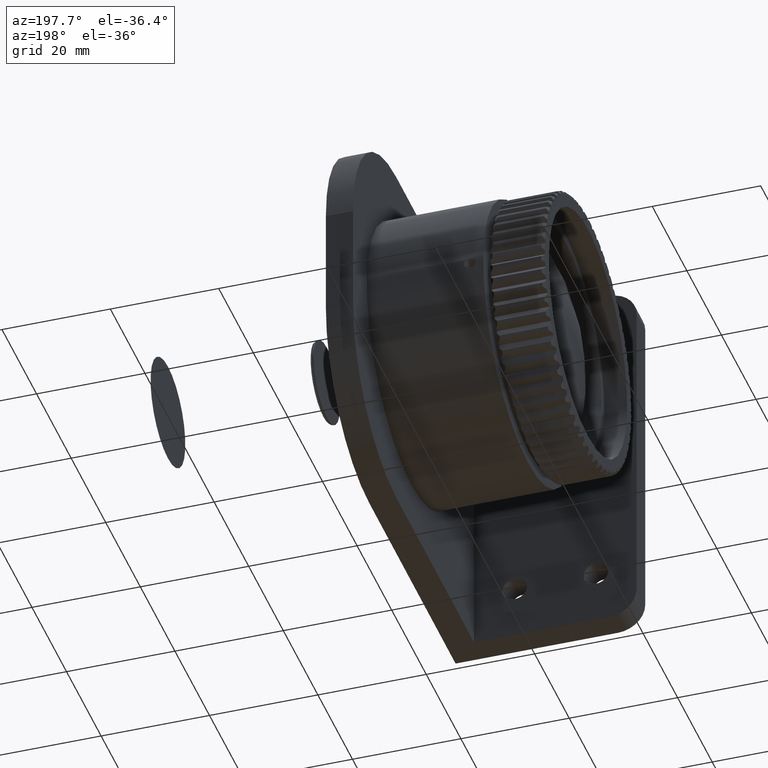
[diagram: clean part render]
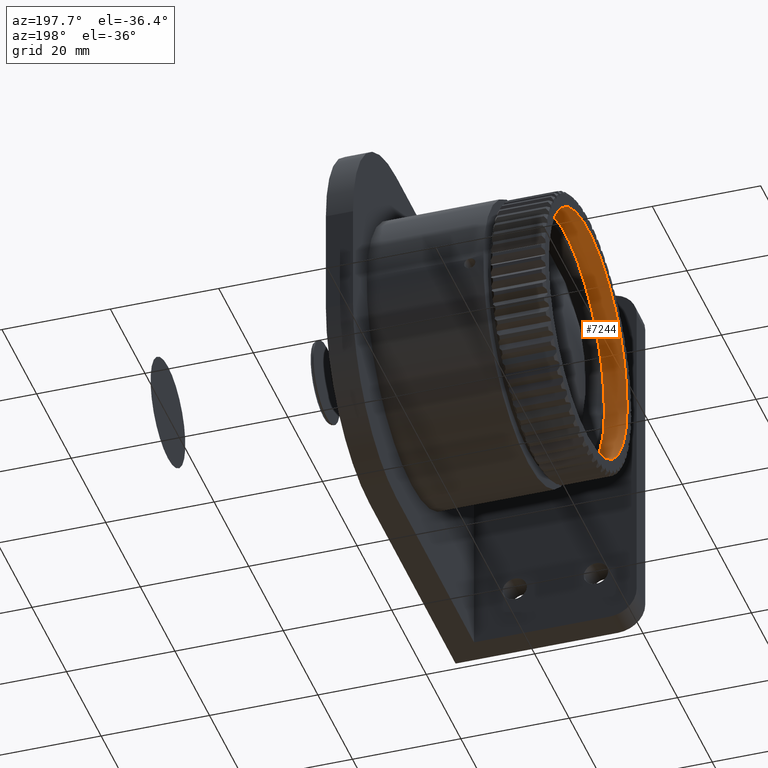
[diagram: same view with one face highlighted and labeled with its STEP entity id]
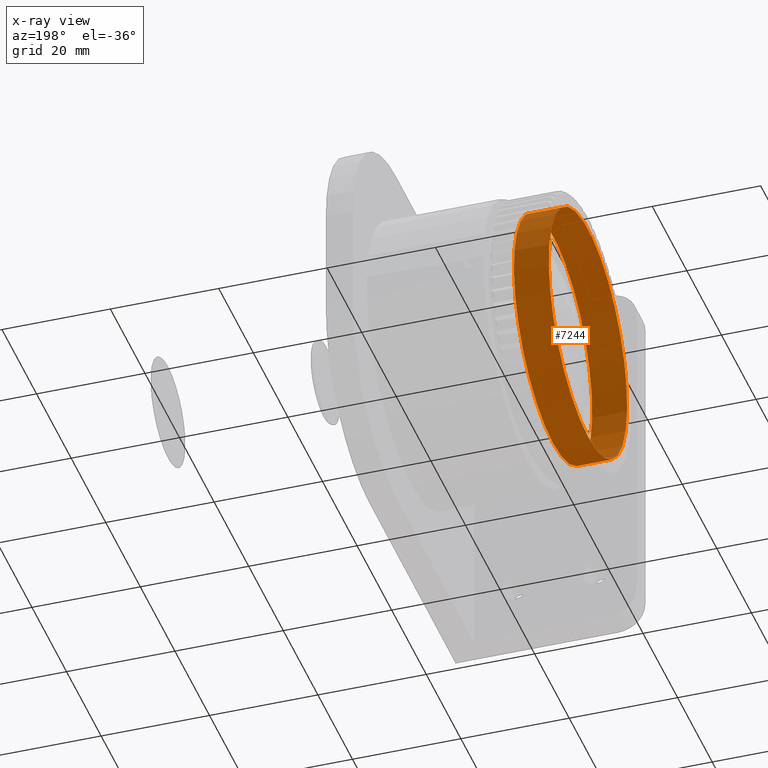
[diagram: x-ray of the same camera — body ghosted, the highlighted face saturated]
A machine part, auxiliary view. The second image highlights one B-rep face of the part: STEP entity #7244.
The next image is the same camera in x-ray: the body ghosted, the highlighted face saturated — about 0% of this face is hidden behind the body in this view.
In plain terms, the highlighted cylindrical surface (bore or boss wall) has radius 22.65 mm, axis along (1, -0, -0).
Its self-contained STEP definition (entity closure, byte-faithful):
#628 = ORIENTED_EDGE ( 'NONE', *, *, #13524, .F. ) ;
#701 = VERTEX_POINT ( 'NONE', #5010 ) ;
#885 = DIRECTION ( 'NONE',  ( 1.000000000000000000, -0.000000000000000000, -0.000000000000000000 ) ) ;
#2627 = DIRECTION ( 'NONE',  ( 1.000000000000000000, -0.000000000000000000, -0.000000000000000000 ) ) ;
#3392 = AXIS2_PLACEMENT_3D ( 'NONE', #7993, #2627, #4954 ) ;
#4790 = ORIENTED_EDGE ( 'NONE', *, *, #10571, .F. ) ;
#4954 = DIRECTION ( 'NONE',  ( 0.000000000000000000, 0.000000000000000000, -1.000000000000000000 ) ) ;
#5010 = CARTESIAN_POINT ( 'NONE',  ( 3.846204000000001066, 0.000000000000000000, -22.64999999999999858 ) ) ;
#5044 = DIRECTION ( 'NONE',  ( 0.000000000000000000, 0.000000000000000000, -1.000000000000000000 ) ) ;
#5079 = AXIS2_PLACEMENT_3D ( 'NONE', #11744, #885, #5191 ) ;
#5191 = DIRECTION ( 'NONE',  ( 0.000000000000000000, 0.000000000000000000, -1.000000000000000000 ) ) ;
#5727 = CARTESIAN_POINT ( 'NONE',  ( -2.603796000000001332, 0.000000000000000000, -22.64999999999999858 ) ) ;
#5859 = VERTEX_POINT ( 'NONE', #5727 ) ;
#6013 = EDGE_LOOP ( 'NONE', ( #4790 ) ) ;
#6185 = FACE_OUTER_BOUND ( 'NONE', #12485, .T. ) ;
#6531 = CIRCLE ( 'NONE', #3392, 22.64999999999999858 ) ;
#6887 = DIRECTION ( 'NONE',  ( -1.000000000000000000, 0.000000000000000000, 0.000000000000000000 ) ) ;
#7244 = ADVANCED_FACE ( 'NONE', ( #13634, #6185 ), #7300, .F. ) ;
#7300 = CYLINDRICAL_SURFACE ( 'NONE', #5079, 22.64999999999999858 ) ;
#7993 = CARTESIAN_POINT ( 'NONE',  ( -2.603796000000001332, 0.000000000000000000, 0.000000000000000000 ) ) ;
#8372 = CIRCLE ( 'NONE', #12636, 22.64999999999999858 ) ;
#10332 = CARTESIAN_POINT ( 'NONE',  ( 3.846204000000001066, 0.000000000000000000, 0.000000000000000000 ) ) ;
#10571 = EDGE_CURVE ( 'NONE', #5859, #5859, #6531, .T. ) ;
#11744 = CARTESIAN_POINT ( 'NONE',  ( 0.000000000000000000, 0.000000000000000000, 0.000000000000000000 ) ) ;
#12485 = EDGE_LOOP ( 'NONE', ( #628 ) ) ;
#12636 = AXIS2_PLACEMENT_3D ( 'NONE', #10332, #6887, #5044 ) ;
#13524 = EDGE_CURVE ( 'NONE', #701, #701, #8372, .T. ) ;
#13634 = FACE_OUTER_BOUND ( 'NONE', #6013, .T. ) ;